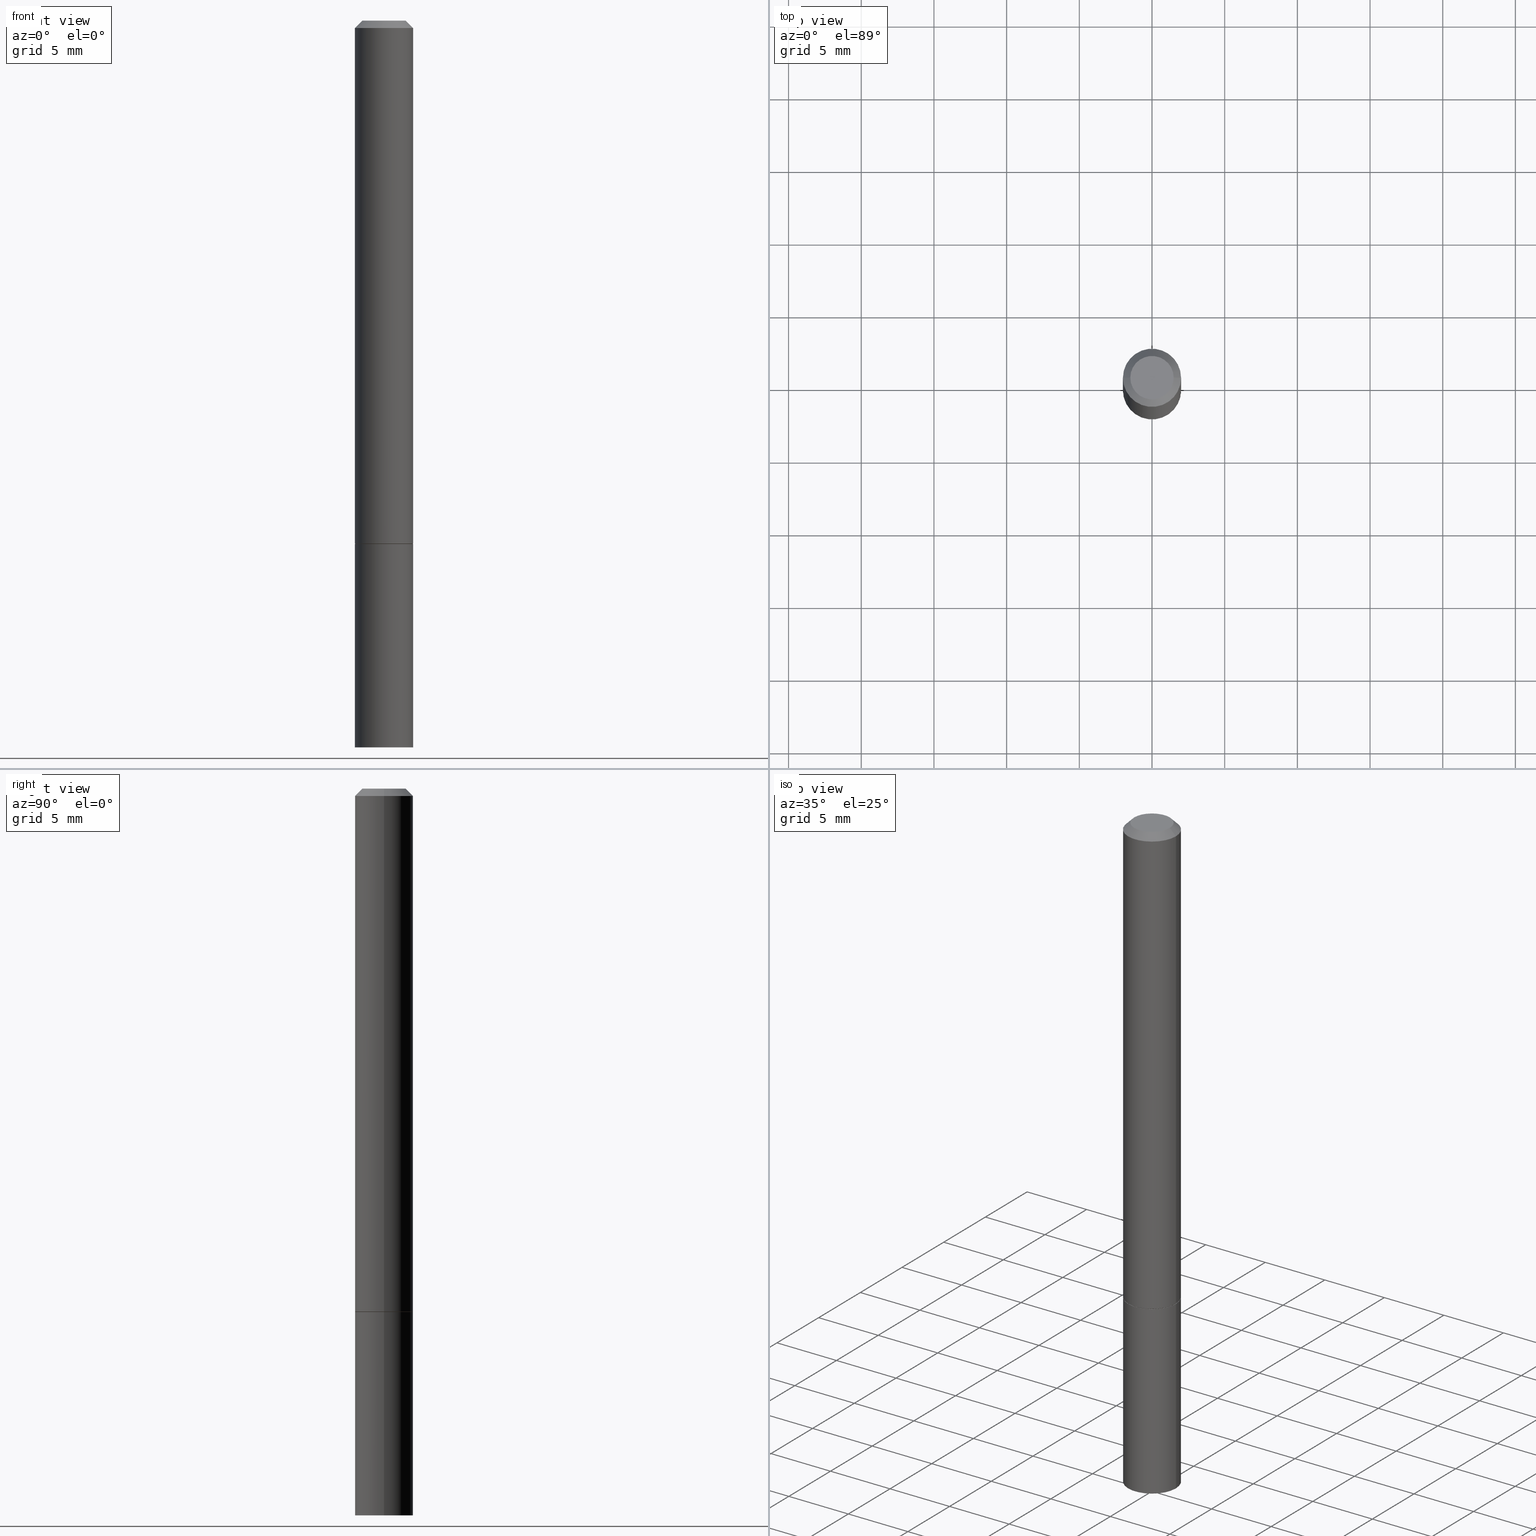
[diagram: canonical four-view strip — front | top / right | iso, engineering-drawing reading convention]
A machine part, canonical four-view strip (front | top / right | iso — engineering-drawing reading convention). The complete STEP part file that produces these views, byte-faithful:
ISO-10303-21;
HEADER;
FILE_DESCRIPTION (( 'STEP AP203' ),
    '1' );
FILE_NAME ('40129.STEP',
    '2024-02-28T01:31:01',
    ( '' ),
    ( '' ),
    'SwSTEP 2.0',
    'SolidWorks 2023',
    '' );
FILE_SCHEMA (( 'CONFIG_CONTROL_DESIGN' ));
ENDSEC;

DATA;
#1 = AXIS2_PLACEMENT_3D ( 'NONE', #326, #156, #240 ) ;
#2 = ADVANCED_FACE ( 'NONE', ( #6 ), #29, .T. ) ;
#3 = PERSON_AND_ORGANIZATION_ROLE ( 'creator' ) ;
#4 = ORIENTED_EDGE ( 'NONE', *, *, #142, .T. ) ;
#5 = APPROVAL_ROLE ( '' ) ;
#6 = FACE_OUTER_BOUND ( 'NONE', #360, .T. ) ;
#7 = CALENDAR_DATE ( 2024, 27, 2 ) ;
#8 = CARTESIAN_POINT ( 'NONE',  ( 4.813905344975441835E-29, -6.872981015512731707E-15, -1.968500000000000139 ) ) ;
#9 = CIRCLE ( 'NONE', #257, 0.07875000000000000056 ) ;
#10 = DATE_TIME_ROLE ( 'creation_date' ) ;
#11 = LOCAL_TIME ( 20, 31, 1.000000000000000000, #66 ) ;
#12 = DIRECTION ( 'NONE',  ( 2.445468806185136597E-29, -3.491481338843145583E-15, -1.000000000000000000 ) ) ;
#13 = CALENDAR_DATE ( 2024, 27, 2 ) ;
#14 = VERTEX_POINT ( 'NONE', #37 ) ;
#15 = DIRECTION ( 'NONE',  ( 1.000000000000000000, -6.982962677686265922E-15, 4.876176775795935232E-29 ) ) ;
#16 = AXIS2_PLACEMENT_3D ( 'NONE', #80, #297, #15 ) ;
#17 = AXIS2_PLACEMENT_3D ( 'NONE', #249, #160, #85 ) ;
#18 = DIRECTION ( 'NONE',  ( 1.000000000000000000, -6.982962677686261977E-15, 0.000000000000000000 ) ) ;
#19 = DIRECTION ( 'NONE',  ( -2.445468806185136877E-29, 3.491481338843145188E-15, 1.000000000000000000 ) ) ;
#20 = PLANE ( 'NONE',  #328 ) ;
#21 = LINE ( 'NONE', #215, #60 ) ;
#22 = CIRCLE ( 'NONE', #165, 0.07874999999999984790 ) ;
#23 = APPROVAL_PERSON_ORGANIZATION ( #235, #78, #279 ) ;
#24 = FACE_OUTER_BOUND ( 'NONE', #90, .T. ) ;
#25 = DIRECTION ( 'NONE',  ( -1.000000000000000000, 6.982962677686265922E-15, -4.876176775795935793E-29 ) ) ;
#26 = ORIENTED_EDGE ( 'NONE', *, *, #214, .T. ) ;
#27 = CC_DESIGN_PERSON_AND_ORGANIZATION_ASSIGNMENT ( #41, #175, ( #185 ) ) ;
#28 = LINE ( 'NONE', #55, #54 ) ;
#29 = CONICAL_SURFACE ( 'NONE', #189, 0.07874999999999984790, 0.7853981633974471688 ) ;
#30 = VERTEX_POINT ( 'NONE', #197 ) ;
#31 = LENGTH_MEASURE_WITH_UNIT ( LENGTH_MEASURE( 0.02539999999999999897 ), #358 );
#32 = CC_DESIGN_PERSON_AND_ORGANIZATION_ASSIGNMENT ( #312, #38, ( #341 ) ) ;
#33 = CIRCLE ( 'NONE', #150, 0.07875000000000000056 ) ;
#34 = APPROVAL_STATUS ( 'not_yet_approved' ) ;
#35 = VERTEX_POINT ( 'NONE', #125 ) ;
#36 = DATE_AND_TIME ( #7, #181 ) ;
#37 = CARTESIAN_POINT ( 'NONE',  ( -0.07874999999999984790, 4.800786840909293572E-16, -0.02000000000000004205 ) ) ;
#38 = PERSON_AND_ORGANIZATION_ROLE ( 'classification_officer' ) ;
#39 = EDGE_LOOP ( 'NONE', ( #277, #110, #229, #250 ) ) ;
#40 = VECTOR ( 'NONE', #213, 39.37007874015748143 ) ;
#41 = PERSON_AND_ORGANIZATION ( #205, #334 ) ;
#42 = ORIENTED_EDGE ( 'NONE', *, *, #95, .F. ) ;
#43 = DIRECTION ( 'NONE',  ( -1.000000000000000000, 6.982962677686265922E-15, 0.000000000000000000 ) ) ;
#44 = EDGE_CURVE ( 'NONE', #30, #148, #33, .T. ) ;
#45 = DIRECTION ( 'NONE',  ( 1.000000000000000000, -6.982962677686265922E-15, 4.876176775795935232E-29 ) ) ;
#46 = DIRECTION ( 'NONE',  ( -2.445468806185136597E-29, 3.491481338843145583E-15, 1.000000000000000000 ) ) ;
#47 = DIRECTION ( 'NONE',  ( 0.7071067811865466846, -7.319954787623252890E-15, -0.7071067811865483499 ) ) ;
#48 = CARTESIAN_POINT ( 'NONE',  ( -0.07774999999999999967, -4.390731070140690247E-15, -1.417300000000000226 ) ) ;
#49 = CARTESIAN_POINT ( 'NONE',  ( 5.499083108678415648E-16, 0.07874999999999311717, -1.968500000000000361 ) ) ;
#50 = VECTOR ( 'NONE', #364, 39.37007874015748143 ) ;
#51 = DIRECTION ( 'NONE',  ( 1.000000000000000000, -6.982962677686265922E-15, 4.876176775795935793E-29 ) ) ;
#52 = ORIENTED_EDGE ( 'NONE', *, *, #131, .T. ) ;
#53 = DIRECTION ( 'NONE',  ( 0.7071067811864267805, -2.468850131080992517E-15, 0.7071067811866682540 ) ) ;
#54 = VECTOR ( 'NONE', #166, 39.37007874015748143 ) ;
#55 = CARTESIAN_POINT ( 'NONE',  ( -0.07874999999999984790, 4.800786840909293572E-16, -0.02000000000000004205 ) ) ;
#56 = PERSON_AND_ORGANIZATION_ROLE ( 'design_supplier' ) ;
#57 = CALENDAR_DATE ( 2024, 27, 2 ) ;
#58 = CARTESIAN_POINT ( 'NONE',  ( 3.463517470200008716E-29, -4.944985020203546646E-15, -1.416299999999999892 ) ) ;
#59 = DESIGN_CONTEXT ( 'detailed design', #169, 'design' ) ;
#60 = VECTOR ( 'NONE', #262, 39.37007874015748143 ) ;
#61 = ADVANCED_FACE ( 'NONE', ( #315 ), #210, .F. ) ;
#62 = ORIENTED_EDGE ( 'NONE', *, *, #44, .T. ) ;
#63 = PRODUCT_RELATED_PRODUCT_CATEGORY ( 'detail', '', ( #185 ) ) ;
#64 = APPROVAL_STATUS ( 'not_yet_approved' ) ;
#65 = ORIENTED_EDGE ( 'NONE', *, *, #112, .T. ) ;
#66 = COORDINATED_UNIVERSAL_TIME_OFFSET ( 5, 0, .BEHIND. ) ;
#67 = ORIENTED_EDGE ( 'NONE', *, *, #321, .T. ) ;
#68 = AXIS2_PLACEMENT_3D ( 'NONE', #261, #46, #320 ) ;
#69 = PRODUCT_DEFINITION_FORMATION_WITH_SPECIFIED_SOURCE ( 'ANY', '', #185, .NOT_KNOWN. ) ;
#70 = CIRCLE ( 'NONE', #288, 0.05874999999999985095 ) ;
#71 = ORIENTED_EDGE ( 'NONE', *, *, #218, .T. ) ;
#72 = CARTESIAN_POINT ( 'NONE',  ( 0.000000000000000000, 0.000000000000000000, 0.000000000000000000 ) ) ;
#73 = DIRECTION ( 'NONE',  ( 1.000000000000000000, -6.982962677686261977E-15, 0.000000000000000000 ) ) ;
#74 = MANIFOLD_SOLID_BREP ( 'Body-Move/Copy2[2]', #81 ) ;
#75 = CIRCLE ( 'NONE', #274, 0.07875000000000000056 ) ;
#76 = CIRCLE ( 'NONE', #190, 0.07875000000000000056 ) ;
#77 = DIRECTION ( 'NONE',  ( -2.445468806185136597E-29, 3.491481338843145583E-15, 1.000000000000000000 ) ) ;
#78 = APPROVAL ( #232, 'UNSPECIFIED' ) ;
#79 = CARTESIAN_POINT ( 'NONE',  ( 4.102490573140670944E-16, 0.05874999999999985095, -2.051245286570342868E-16 ) ) ;
#80 = CARTESIAN_POINT ( 'NONE',  ( 0.000000000000000000, 0.000000000000000000, 0.000000000000000000 ) ) ;
#81 = CLOSED_SHELL ( 'NONE', ( #126, #304, #316, #2, #363, #291, #61, #209 ) ) ;
#82 = VERTEX_POINT ( 'NONE', #200 ) ;
#83 = CYLINDRICAL_SURFACE ( 'NONE', #356, 0.07874999999999991729 ) ;
#84 = EDGE_CURVE ( 'NONE', #14, #143, #104, .T. ) ;
#85 = DIRECTION ( 'NONE',  ( -1.000000000000000000, 6.982962677686265922E-15, 0.000000000000000000 ) ) ;
#86 = AXIS2_PLACEMENT_3D ( 'NONE', #324, #323, #18 ) ;
#87 = AXIS2_PLACEMENT_3D ( 'NONE', #194, #221, #272 ) ;
#88 = CARTESIAN_POINT ( 'NONE',  ( 0.000000000000000000, 0.000000000000000000, 0.000000000000000000 ) ) ;
#89 = COORDINATED_UNIVERSAL_TIME_OFFSET ( 5, 0, .BEHIND. ) ;
#90 = EDGE_LOOP ( 'NONE', ( #285, #191 ) ) ;
#91 = DIRECTION ( 'NONE',  ( 1.000000000000000000, -6.982962677686265922E-15, 4.876176775795935793E-29 ) ) ;
#92 = APPROVAL ( #34, 'UNSPECIFIED' ) ;
#93 = PERSON_AND_ORGANIZATION ( #205, #334 ) ;
#94 = DIRECTION ( 'NONE',  ( -2.445468806185136597E-29, 3.491481338843145583E-15, 1.000000000000000000 ) ) ;
#95 = EDGE_CURVE ( 'NONE', #82, #309, #9, .T. ) ;
#96 = APPLICATION_PROTOCOL_DEFINITION ( 'international standard', 'config_control_design', 1994, #169 ) ;
#97 = ORIENTED_EDGE ( 'NONE', *, *, #106, .T. ) ;
#98 = EDGE_LOOP ( 'NONE', ( #180, #313, #300, #146 ) ) ;
#99 = FACE_OUTER_BOUND ( 'NONE', #339, .T. ) ;
#100 = CARTESIAN_POINT ( 'NONE',  ( 3.463517470200008716E-29, -4.944985020203546646E-15, -1.416299999999999892 ) ) ;
#101 = EDGE_CURVE ( 'NONE', #289, #172, #75, .T. ) ;
#102 = DIRECTION ( 'NONE',  ( -2.445468806185136597E-29, 3.491481338843145583E-15, 1.000000000000000000 ) ) ;
#103 = CC_DESIGN_PERSON_AND_ORGANIZATION_ASSIGNMENT ( #179, #3, ( #69 ) ) ;
#104 = CIRCLE ( 'NONE', #348, 0.07874999999999984790 ) ;
#105 = DIRECTION ( 'NONE',  ( 2.438088387897960049E-29, -3.491481338843145188E-15, -1.000000000000000000 ) ) ;
#106 = EDGE_CURVE ( 'NONE', #35, #143, #350, .T. ) ;
#107 = CARTESIAN_POINT ( 'NONE',  ( 4.890937612370283668E-31, -6.982962677686305168E-17, -0.02000000000000004205 ) ) ;
#108 = LINE ( 'NONE', #299, #50 ) ;
#109 =( NAMED_UNIT ( * ) SI_UNIT ( $, .STERADIAN. ) SOLID_ANGLE_UNIT ( ) );
#110 = ORIENTED_EDGE ( 'NONE', *, *, #351, .T. ) ;
#111 = APPLICATION_PROTOCOL_DEFINITION ( 'international standard', 'config_control_design', 1994, #325 ) ;
#112 = EDGE_CURVE ( 'NONE', #82, #289, #136, .T. ) ;
#113 = CARTESIAN_POINT ( 'NONE',  ( 3.465962939006194880E-29, -4.948476501542391231E-15, -1.417300000000000226 ) ) ;
#114 = ORIENTED_EDGE ( 'NONE', *, *, #84, .F. ) ;
#115 = DIRECTION ( 'NONE',  ( 1.000000000000000000, -6.982962677686261977E-15, 0.000000000000000000 ) ) ;
#116 = VECTOR ( 'NONE', #245, 39.37007874015748143 ) ;
#117 = CARTESIAN_POINT ( 'NONE',  ( 4.890937612370283668E-31, -6.982962677686305168E-17, -0.02000000000000004205 ) ) ;
#118 = DATE_AND_TIME ( #252, #318 ) ;
#119 = DIRECTION ( 'NONE',  ( -2.438088387897960049E-29, 3.491481338843145188E-15, 1.000000000000000000 ) ) ;
#120 = DIRECTION ( 'NONE',  ( 0.000000000000000000, 0.000000000000000000, 1.000000000000000000 ) ) ;
#121 = VERTEX_POINT ( 'NONE', #296 ) ;
#122 = CIRCLE ( 'NONE', #225, 0.05874999999999985095 ) ;
#123 = CONICAL_SURFACE ( 'NONE', #17, 0.07874999999999984790, 0.7853981633974471688 ) ;
#124 = CARTESIAN_POINT ( 'NONE',  ( 0.000000000000000000, 0.000000000000000000, 0.000000000000000000 ) ) ;
#125 = CARTESIAN_POINT ( 'NONE',  ( 0.05874999999999985095, -5.065740507352233199E-16, 3.205406768517977340E-30 ) ) ;
#126 = ADVANCED_FACE ( 'NONE', ( #211 ), #244, .T. ) ;
#127 = SHAPE_DEFINITION_REPRESENTATION ( #243, #174 ) ;
#128 = ORIENTED_EDGE ( 'NONE', *, *, #351, .F. ) ;
#129 = CARTESIAN_POINT ( 'NONE',  ( 0.000000000000000000, 0.000000000000000000, 0.000000000000000000 ) ) ;
#130 = APPROVAL_PERSON_ORGANIZATION ( #196, #92, #5 ) ;
#131 = EDGE_CURVE ( 'NONE', #143, #14, #22, .T. ) ;
#132 = FACE_OUTER_BOUND ( 'NONE', #248, .T. ) ;
#133 = CARTESIAN_POINT ( 'NONE',  ( -0.05874999999999985095, 4.451638707024982998E-16, -2.990994270918719790E-30 ) ) ;
#134 = DIRECTION ( 'NONE',  ( 2.438088387897960049E-29, -3.491481338843145188E-15, -1.000000000000000000 ) ) ;
#135 = AXIS2_PLACEMENT_3D ( 'NONE', #124, #120, #170 ) ;
#136 = LINE ( 'NONE', #353, #40 ) ;
#137 = DIRECTION ( 'NONE',  ( 2.438088387897960049E-29, -3.491481338843145188E-15, -1.000000000000000000 ) ) ;
#138 = ORIENTED_EDGE ( 'NONE', *, *, #359, .F. ) ;
#139 = DIMENSIONAL_EXPONENTS ( 1.000000000000000000, 0.000000000000000000, 0.000000000000000000, 0.000000000000000000, 0.000000000000000000, 0.000000000000000000, 0.000000000000000000 ) ;
#140 = CARTESIAN_POINT ( 'NONE',  ( 0.000000000000000000, 0.000000000000000000, 0.000000000000000000 ) ) ;
#141 = CARTESIAN_POINT ( 'NONE',  ( 3.465962939006194880E-29, -4.948476501542391231E-15, -1.417300000000000226 ) ) ;
#142 = EDGE_CURVE ( 'NONE', #281, #35, #122, .T. ) ;
#143 = VERTEX_POINT ( 'NONE', #157 ) ;
#144 = CC_DESIGN_DATE_AND_TIME_ASSIGNMENT ( #177, #286, ( #341 ) ) ;
#145 = COORDINATED_UNIVERSAL_TIME_OFFSET ( 5, 0, .BEHIND. ) ;
#146 = ORIENTED_EDGE ( 'NONE', *, *, #112, .F. ) ;
#147 = PERSON_AND_ORGANIZATION ( #205, #334 ) ;
#148 = VERTEX_POINT ( 'NONE', #184 ) ;
#149 = ORIENTED_EDGE ( 'NONE', *, *, #163, .F. ) ;
#150 = AXIS2_PLACEMENT_3D ( 'NONE', #58, #94, #347 ) ;
#151 = CIRCLE ( 'NONE', #87, 0.07774999999999999967 ) ;
#152 = DATE_AND_TIME ( #13, #201 ) ;
#153 = ORIENTED_EDGE ( 'NONE', *, *, #294, .F. ) ;
#154 = ORIENTED_EDGE ( 'NONE', *, *, #202, .T. ) ;
#155 = CARTESIAN_POINT ( 'NONE',  ( 3.465962939006194880E-29, -4.948476501542391231E-15, -1.417300000000000226 ) ) ;
#156 = DIRECTION ( 'NONE',  ( -2.445468806185136597E-29, 3.491481338843145583E-15, 1.000000000000000000 ) ) ;
#157 = CARTESIAN_POINT ( 'NONE',  ( 0.07874999999999984790, -6.100938441013701032E-16, -0.02000000000000004205 ) ) ;
#158 = DIRECTION ( 'NONE',  ( 1.000000000000000000, -6.982962677686265922E-15, 0.000000000000000000 ) ) ;
#159 = VECTOR ( 'NONE', #19, 39.37007874015748143 ) ;
#160 = DIRECTION ( 'NONE',  ( 2.445468806185136597E-29, -3.491481338843145583E-15, -1.000000000000000000 ) ) ;
#161 = FACE_OUTER_BOUND ( 'NONE', #39, .T. ) ;
#162 = EDGE_LOOP ( 'NONE', ( #128, #62, #26, #114 ) ) ;
#163 = EDGE_CURVE ( 'NONE', #309, #172, #186, .T. ) ;
#164 = CARTESIAN_POINT ( 'NONE',  ( -0.07875000000000000056, -5.351176354116483062E-15, -1.968500000000000139 ) ) ;
#165 = AXIS2_PLACEMENT_3D ( 'NONE', #107, #216, #158 ) ;
#166 = DIRECTION ( 'NONE',  ( -0.7071067811865466846, 2.468850131082247989E-15, -0.7071067811865483499 ) ) ;
#167 = ADVANCED_FACE ( 'NONE', ( #99 ), #20, .T. ) ;
#168 = ORIENTED_EDGE ( 'NONE', *, *, #44, .F. ) ;
#169 = APPLICATION_CONTEXT ( 'configuration controlled 3d designs of mechanical parts and assemblies' ) ;
#170 = DIRECTION ( 'NONE',  ( 1.000000000000000000, 0.000000000000000000, 0.000000000000000000 ) ) ;
#171 = CIRCLE ( 'NONE', #68, 0.07774999999999999967 ) ;
#172 = VERTEX_POINT ( 'NONE', #292 ) ;
#173 = AXIS2_PLACEMENT_3D ( 'NONE', #88, #302, #336 ) ;
#174 = ADVANCED_BREP_SHAPE_REPRESENTATION ( '40129', ( #193, #74, #135 ), #271 ) ;
#175 = PERSON_AND_ORGANIZATION_ROLE ( 'design_owner' ) ;
#176 = VERTEX_POINT ( 'NONE', #48 ) ;
#177 = DATE_AND_TIME ( #208, #349 ) ;
#178 = EDGE_LOOP ( 'NONE', ( #207, #231 ) ) ;
#179 = PERSON_AND_ORGANIZATION ( #205, #334 ) ;
#180 = ORIENTED_EDGE ( 'NONE', *, *, #95, .T. ) ;
#181 = LOCAL_TIME ( 20, 31, 1.000000000000000000, #89 ) ;
#182 = CARTESIAN_POINT ( 'NONE',  ( 4.890937612370283668E-31, -6.982962677686305168E-17, -0.02000000000000004205 ) ) ;
#183 = DIRECTION ( 'NONE',  ( -2.445468806185136597E-29, 3.491481338843145583E-15, 1.000000000000000000 ) ) ;
#184 = CARTESIAN_POINT ( 'NONE',  ( 0.07875000000000000056, -5.494893331071339992E-15, -1.416299999999999892 ) ) ;
#185 = PRODUCT ( '40129', '40129', '', ( #256 ) ) ;
#186 = LINE ( 'NONE', #267, #159 ) ;
#187 = CARTESIAN_POINT ( 'NONE',  ( 0.07874999999999991729, -5.499083108677928526E-16, 3.839989210939295513E-30 ) ) ;
#188 = DIRECTION ( 'NONE',  ( -1.000000000000000000, 6.982962677686265922E-15, -4.876176775795935793E-29 ) ) ;
#189 = AXIS2_PLACEMENT_3D ( 'NONE', #117, #12, #43 ) ;
#190 = AXIS2_PLACEMENT_3D ( 'NONE', #113, #223, #115 ) ;
#191 = ORIENTED_EDGE ( 'NONE', *, *, #294, .T. ) ;
#192 = FACE_OUTER_BOUND ( 'NONE', #204, .T. ) ;
#193 = MANIFOLD_SOLID_BREP ( 'Body-Move/Copy2[1]', #293 ) ;
#194 = CARTESIAN_POINT ( 'NONE',  ( 3.465962939006194880E-29, -4.948476501542391231E-15, -1.417300000000000226 ) ) ;
#195 = DIRECTION ( 'NONE',  ( -2.445468806185136597E-29, 3.491481338843145583E-15, 1.000000000000000000 ) ) ;
#196 = PERSON_AND_ORGANIZATION ( #205, #334 ) ;
#197 = CARTESIAN_POINT ( 'NONE',  ( -0.07875000000000000056, -1.947854919079123015E-15, -1.416299999999999892 ) ) ;
#198 = UNCERTAINTY_MEASURE_WITH_UNIT (LENGTH_MEASURE( 1.000000000000000082E-05 ), #217, 'distance_accuracy_value', 'NONE');
#199 = VECTOR ( 'NONE', #53, 39.37007874015748143 ) ;
#200 = CARTESIAN_POINT ( 'NONE',  ( 0.07875000000000000056, -7.422889326380525053E-15, -1.968500000000000139 ) ) ;
#201 = LOCAL_TIME ( 20, 31, 1.000000000000000000, #206 ) ;
#202 = EDGE_CURVE ( 'NONE', #176, #121, #171, .T. ) ;
#203 = SECURITY_CLASSIFICATION_LEVEL ( 'unclassified' ) ;
#204 = EDGE_LOOP ( 'NONE', ( #365, #154, #342, #168 ) ) ;
#205 = PERSON ( 'UNSPECIFIED', 'UNSPECIFIED', 'UNSPECIFIED', ('UNSPECIFIED'), ('UNSPECIFIED'), ('UNSPECIFIED') ) ;
#206 = COORDINATED_UNIVERSAL_TIME_OFFSET ( 5, 0, .BEHIND. ) ;
#207 = ORIENTED_EDGE ( 'NONE', *, *, #335, .F. ) ;
#208 = CALENDAR_DATE ( 2024, 27, 2 ) ;
#209 = ADVANCED_FACE ( 'NONE', ( #132 ), #354, .F. ) ;
#210 = PLANE ( 'NONE',  #251 ) ;
#211 = FACE_OUTER_BOUND ( 'NONE', #224, .T. ) ;
#212 = DIRECTION ( 'NONE',  ( -2.445468806185136597E-29, 3.491481338843145583E-15, 1.000000000000000000 ) ) ;
#213 = DIRECTION ( 'NONE',  ( -2.445468806185136877E-29, 3.491481338843145188E-15, 1.000000000000000000 ) ) ;
#214 = EDGE_CURVE ( 'NONE', #148, #143, #352, .T. ) ;
#215 = CARTESIAN_POINT ( 'NONE',  ( -0.07774999999999999967, -4.396029524488913438E-15, -1.417300000000000226 ) ) ;
#216 = DIRECTION ( 'NONE',  ( -2.445468806185136597E-29, 3.491481338843145583E-15, 1.000000000000000000 ) ) ;
#217 =( CONVERSION_BASED_UNIT ( 'INCH', #31 ) LENGTH_UNIT ( ) NAMED_UNIT ( #139 ) );
#218 = EDGE_CURVE ( 'NONE', #309, #82, #317, .T. ) ;
#219 = CC_DESIGN_DATE_AND_TIME_ASSIGNMENT ( #340, #10, ( #332 ) ) ;
#220 = ORIENTED_EDGE ( 'NONE', *, *, #335, .T. ) ;
#221 = DIRECTION ( 'NONE',  ( -2.445468806185136597E-29, 3.491481338843145583E-15, 1.000000000000000000 ) ) ;
#222 = ADVANCED_FACE ( 'NONE', ( #357 ), #241, .T. ) ;
#223 = DIRECTION ( 'NONE',  ( -2.445468806185136597E-29, 3.491481338843145583E-15, 1.000000000000000000 ) ) ;
#224 = EDGE_LOOP ( 'NONE', ( #220, #255, #345, #338 ) ) ;
#225 = AXIS2_PLACEMENT_3D ( 'NONE', #129, #102, #295 ) ;
#226 = LINE ( 'NONE', #301, #199 ) ;
#227 = CC_DESIGN_APPROVAL ( #298, ( #69 ) ) ;
#228 = ORIENTED_EDGE ( 'NONE', *, *, #359, .T. ) ;
#229 = ORIENTED_EDGE ( 'NONE', *, *, #131, .F. ) ;
#230 = ADVANCED_FACE ( 'NONE', ( #268 ), #242, .T. ) ;
#231 = ORIENTED_EDGE ( 'NONE', *, *, #202, .F. ) ;
#232 = APPROVAL_STATUS ( 'not_yet_approved' ) ;
#233 = DIRECTION ( 'NONE',  ( -2.445468806185136597E-29, 3.491481338843145583E-15, 1.000000000000000000 ) ) ;
#234 = CC_DESIGN_SECURITY_CLASSIFICATION ( #341, ( #69 ) ) ;
#235 = PERSON_AND_ORGANIZATION ( #205, #334 ) ;
#236 = EDGE_LOOP ( 'NONE', ( #307, #97, #52, #138 ) ) ;
#237 = APPROVAL_DATE_TIME ( #36, #78 ) ;
#238 = ORIENTED_EDGE ( 'NONE', *, *, #106, .F. ) ;
#239 = DIRECTION ( 'NONE',  ( -1.000000000000000000, 6.982962677686265922E-15, -4.876176775795935793E-29 ) ) ;
#240 = DIRECTION ( 'NONE',  ( 1.000000000000000000, -6.982962677686261977E-15, 0.000000000000000000 ) ) ;
#241 = CYLINDRICAL_SURFACE ( 'NONE', #16, 0.07875000000000000056 ) ;
#242 = CYLINDRICAL_SURFACE ( 'NONE', #263, 0.07875000000000000056 ) ;
#243 = PRODUCT_DEFINITION_SHAPE ( 'NONE', 'NONE',  #332 ) ;
#244 = CONICAL_SURFACE ( 'NONE', #86, 0.07774999999999999967, 0.7853981633972775267 ) ;
#245 = DIRECTION ( 'NONE',  ( -2.445468806185136877E-29, 3.491481338843145188E-15, 1.000000000000000000 ) ) ;
#246 = CYLINDRICAL_SURFACE ( 'NONE', #173, 0.07874999999999991729 ) ;
#247 = CARTESIAN_POINT ( 'NONE',  ( 5.499083108678280556E-16, 0.07874999999999504618, -1.417300000000000448 ) ) ;
#248 = EDGE_LOOP ( 'NONE', ( #4, #67 ) ) ;
#249 = CARTESIAN_POINT ( 'NONE',  ( 4.890937612370283668E-31, -6.982962677686305168E-17, -0.02000000000000004205 ) ) ;
#250 = ORIENTED_EDGE ( 'NONE', *, *, #214, .F. ) ;
#251 = AXIS2_PLACEMENT_3D ( 'NONE', #253, #119, #91 ) ;
#252 = CALENDAR_DATE ( 2024, 27, 2 ) ;
#253 = CARTESIAN_POINT ( 'NONE',  ( 3.465962939006194880E-29, -4.948476501542391231E-15, -1.417300000000000226 ) ) ;
#254 = EDGE_CURVE ( 'NONE', #176, #30, #21, .T. ) ;
#255 = ORIENTED_EDGE ( 'NONE', *, *, #254, .T. ) ;
#256 = MECHANICAL_CONTEXT ( 'NONE', #325, 'mechanical' ) ;
#257 = AXIS2_PLACEMENT_3D ( 'NONE', #8, #233, #290 ) ;
#258 = ORIENTED_EDGE ( 'NONE', *, *, #218, .F. ) ;
#259 = APPROVAL_DATE_TIME ( #118, #92 ) ;
#260 = ORIENTED_EDGE ( 'NONE', *, *, #84, .T. ) ;
#261 = CARTESIAN_POINT ( 'NONE',  ( 3.465962939006194880E-29, -4.948476501542391231E-15, -1.417300000000000226 ) ) ;
#262 = DIRECTION ( 'NONE',  ( -0.7071067811864267805, 7.493145998869918709E-15, 0.7071067811866682540 ) ) ;
#263 = AXIS2_PLACEMENT_3D ( 'NONE', #72, #183, #45 ) ;
#264 = CONICAL_SURFACE ( 'NONE', #303, 0.07774999999999999967, 0.7853981633972775267 ) ;
#265 = DIRECTION ( 'NONE',  ( 1.000000000000000000, -6.982962677686261977E-15, 0.000000000000000000 ) ) ;
#266 = CC_DESIGN_PERSON_AND_ORGANIZATION_ASSIGNMENT ( #93, #56, ( #69 ) ) ;
#267 = CARTESIAN_POINT ( 'NONE',  ( -0.07875000000000000056, 5.595524044110789003E-16, -3.873661383575737792E-30 ) ) ;
#268 = FACE_OUTER_BOUND ( 'NONE', #283, .T. ) ;
#269 = AXIS2_PLACEMENT_3D ( 'NONE', #79, #105, #239 ) ;
#270 = CC_DESIGN_APPROVAL ( #92, ( #341 ) ) ;
#271 =( GEOMETRIC_REPRESENTATION_CONTEXT ( 3 ) GLOBAL_UNCERTAINTY_ASSIGNED_CONTEXT ( ( #198 ) ) GLOBAL_UNIT_ASSIGNED_CONTEXT ( ( #217, #327, #109 ) ) REPRESENTATION_CONTEXT ( 'NONE', 'WORKASPACE' ) );
#272 = DIRECTION ( 'NONE',  ( 1.000000000000000000, -6.982962677686261977E-15, 0.000000000000000000 ) ) ;
#273 = DIRECTION ( 'NONE',  ( 1.000000000000000000, -6.982962677686266711E-15, 4.876176775795935793E-29 ) ) ;
#274 = AXIS2_PLACEMENT_3D ( 'NONE', #155, #77, #73 ) ;
#275 = CC_DESIGN_APPROVAL ( #78, ( #332 ) ) ;
#276 = DIRECTION ( 'NONE',  ( -2.445468806185136597E-29, 3.491481338843145583E-15, 1.000000000000000000 ) ) ;
#277 = ORIENTED_EDGE ( 'NONE', *, *, #278, .T. ) ;
#278 = EDGE_CURVE ( 'NONE', #148, #30, #310, .T. ) ;
#279 = APPROVAL_ROLE ( '' ) ;
#280 = APPROVAL_PERSON_ORGANIZATION ( #147, #298, #344 ) ;
#281 = VERTEX_POINT ( 'NONE', #133 ) ;
#282 = EDGE_CURVE ( 'NONE', #121, #148, #226, .T. ) ;
#283 = EDGE_LOOP ( 'NONE', ( #149, #71, #65, #153 ) ) ;
#284 = COORDINATED_UNIVERSAL_TIME_OFFSET ( 5, 0, .BEHIND. ) ;
#285 = ORIENTED_EDGE ( 'NONE', *, *, #101, .T. ) ;
#286 = DATE_TIME_ROLE ( 'classification_date' ) ;
#287 = ORIENTED_EDGE ( 'NONE', *, *, #142, .F. ) ;
#288 = AXIS2_PLACEMENT_3D ( 'NONE', #140, #195, #273 ) ;
#289 = VERTEX_POINT ( 'NONE', #362 ) ;
#290 = DIRECTION ( 'NONE',  ( 1.000000000000000000, -6.982962677686261977E-15, 0.000000000000000000 ) ) ;
#291 = ADVANCED_FACE ( 'NONE', ( #192 ), #264, .T. ) ;
#292 = CARTESIAN_POINT ( 'NONE',  ( -0.07875000000000000056, -5.351176354116483062E-15, -1.417300000000000226 ) ) ;
#293 = CLOSED_SHELL ( 'NONE', ( #222, #167, #343, #230 ) ) ;
#294 = EDGE_CURVE ( 'NONE', #172, #289, #76, .T. ) ;
#295 = DIRECTION ( 'NONE',  ( 1.000000000000000000, -6.982962677686266711E-15, 4.876176775795935793E-29 ) ) ;
#296 = CARTESIAN_POINT ( 'NONE',  ( 0.07774999999999999967, -5.491401849732497774E-15, -1.417300000000000226 ) ) ;
#297 = DIRECTION ( 'NONE',  ( -2.445468806185136597E-29, 3.491481338843145583E-15, 1.000000000000000000 ) ) ;
#298 = APPROVAL ( #64, 'UNSPECIFIED' ) ;
#299 = CARTESIAN_POINT ( 'NONE',  ( -0.07874999999999991729, 5.595524044110783087E-16, -3.873661383575733588E-30 ) ) ;
#300 = ORIENTED_EDGE ( 'NONE', *, *, #101, .F. ) ;
#301 = CARTESIAN_POINT ( 'NONE',  ( 0.07774999999999999967, -5.491401849732497774E-15, -1.417300000000000226 ) ) ;
#302 = DIRECTION ( 'NONE',  ( -2.445468806185136597E-29, 3.491481338843145583E-15, 1.000000000000000000 ) ) ;
#303 = AXIS2_PLACEMENT_3D ( 'NONE', #141, #333, #305 ) ;
#304 = ADVANCED_FACE ( 'NONE', ( #161 ), #246, .T. ) ;
#305 = DIRECTION ( 'NONE',  ( 1.000000000000000000, -6.982962677686261977E-15, 0.000000000000000000 ) ) ;
#306 = FACE_OUTER_BOUND ( 'NONE', #162, .T. ) ;
#307 = ORIENTED_EDGE ( 'NONE', *, *, #321, .F. ) ;
#308 = PERSON_AND_ORGANIZATION_ROLE ( 'creator' ) ;
#309 = VERTEX_POINT ( 'NONE', #164 ) ;
#310 = CIRCLE ( 'NONE', #361, 0.07875000000000000056 ) ;
#311 = DIRECTION ( 'NONE',  ( 1.000000000000000000, -6.982962677686265922E-15, 0.000000000000000000 ) ) ;
#312 = PERSON_AND_ORGANIZATION ( #205, #334 ) ;
#313 = ORIENTED_EDGE ( 'NONE', *, *, #163, .T. ) ;
#314 = APPROVAL_DATE_TIME ( #152, #298 ) ;
#315 = FACE_OUTER_BOUND ( 'NONE', #178, .T. ) ;
#316 = ADVANCED_FACE ( 'NONE', ( #366 ), #123, .T. ) ;
#317 = CIRCLE ( 'NONE', #1, 0.07875000000000000056 ) ;
#318 = LOCAL_TIME ( 20, 31, 1.000000000000000000, #145 ) ;
#319 = DIRECTION ( 'NONE',  ( -2.445468806185136597E-29, 3.491481338843145583E-15, 1.000000000000000000 ) ) ;
#320 = DIRECTION ( 'NONE',  ( 1.000000000000000000, -6.982962677686261977E-15, 0.000000000000000000 ) ) ;
#321 = EDGE_CURVE ( 'NONE', #35, #281, #70, .T. ) ;
#322 = CARTESIAN_POINT ( 'NONE',  ( 0.07874999999999984790, -6.100938441013701032E-16, -0.02000000000000004205 ) ) ;
#323 = DIRECTION ( 'NONE',  ( -2.445468806185136597E-29, 3.491481338843145583E-15, 1.000000000000000000 ) ) ;
#324 = CARTESIAN_POINT ( 'NONE',  ( 3.465962939006194880E-29, -4.948476501542391231E-15, -1.417300000000000226 ) ) ;
#325 = APPLICATION_CONTEXT ( 'configuration controlled 3d designs of mechanical parts and assemblies' ) ;
#326 = CARTESIAN_POINT ( 'NONE',  ( 4.813905344975441835E-29, -6.872981015512731707E-15, -1.968500000000000139 ) ) ;
#327 =( NAMED_UNIT ( * ) PLANE_ANGLE_UNIT ( ) SI_UNIT ( $, .RADIAN. ) );
#328 = AXIS2_PLACEMENT_3D ( 'NONE', #49, #134, #188 ) ;
#329 = AXIS2_PLACEMENT_3D ( 'NONE', #247, #137, #25 ) ;
#330 = CARTESIAN_POINT ( 'NONE',  ( 0.000000000000000000, 0.000000000000000000, 0.000000000000000000 ) ) ;
#331 = PLANE ( 'NONE',  #329 ) ;
#332 = PRODUCT_DEFINITION ( 'UNKNOWN', '', #69, #59 ) ;
#333 = DIRECTION ( 'NONE',  ( -2.445468806185136597E-29, 3.491481338843145583E-15, 1.000000000000000000 ) ) ;
#334 = ORGANIZATION ( 'UNSPECIFIED', 'UNSPECIFIED', '' ) ;
#335 = EDGE_CURVE ( 'NONE', #121, #176, #151, .T. ) ;
#336 = DIRECTION ( 'NONE',  ( 1.000000000000000000, -6.982962677686265922E-15, 4.876176775795935793E-29 ) ) ;
#337 = CC_DESIGN_PERSON_AND_ORGANIZATION_ASSIGNMENT ( #346, #308, ( #332 ) ) ;
#338 = ORIENTED_EDGE ( 'NONE', *, *, #282, .F. ) ;
#339 = EDGE_LOOP ( 'NONE', ( #42, #258 ) ) ;
#340 = DATE_AND_TIME ( #57, #11 ) ;
#341 = SECURITY_CLASSIFICATION ( '', '', #203 ) ;
#342 = ORIENTED_EDGE ( 'NONE', *, *, #282, .T. ) ;
#343 = ADVANCED_FACE ( 'NONE', ( #24 ), #331, .F. ) ;
#344 = APPROVAL_ROLE ( '' ) ;
#345 = ORIENTED_EDGE ( 'NONE', *, *, #278, .F. ) ;
#346 = PERSON_AND_ORGANIZATION ( #205, #334 ) ;
#347 = DIRECTION ( 'NONE',  ( 1.000000000000000000, -6.982962677686261977E-15, 0.000000000000000000 ) ) ;
#348 = AXIS2_PLACEMENT_3D ( 'NONE', #182, #319, #311 ) ;
#349 = LOCAL_TIME ( 20, 31, 1.000000000000000000, #284 ) ;
#350 = LINE ( 'NONE', #322, #355 ) ;
#351 = EDGE_CURVE ( 'NONE', #30, #14, #108, .T. ) ;
#352 = LINE ( 'NONE', #187, #116 ) ;
#353 = CARTESIAN_POINT ( 'NONE',  ( 0.07875000000000000056, -5.499083108677934443E-16, 3.839989210939299016E-30 ) ) ;
#354 = PLANE ( 'NONE',  #269 ) ;
#355 = VECTOR ( 'NONE', #47, 39.37007874015748143 ) ;
#356 = AXIS2_PLACEMENT_3D ( 'NONE', #330, #276, #51 ) ;
#357 = FACE_OUTER_BOUND ( 'NONE', #98, .T. ) ;
#358 =( LENGTH_UNIT ( ) NAMED_UNIT ( * ) SI_UNIT ( $, .METRE. ) );
#359 = EDGE_CURVE ( 'NONE', #281, #14, #28, .T. ) ;
#360 = EDGE_LOOP ( 'NONE', ( #238, #287, #228, #260 ) ) ;
#361 = AXIS2_PLACEMENT_3D ( 'NONE', #100, #212, #265 ) ;
#362 = CARTESIAN_POINT ( 'NONE',  ( 0.07875000000000000056, -5.498384812410184577E-15, -1.417300000000000226 ) ) ;
#363 = ADVANCED_FACE ( 'NONE', ( #306 ), #83, .T. ) ;
#364 = DIRECTION ( 'NONE',  ( -2.445468806185136877E-29, 3.491481338843145188E-15, 1.000000000000000000 ) ) ;
#365 = ORIENTED_EDGE ( 'NONE', *, *, #254, .F. ) ;
#366 = FACE_OUTER_BOUND ( 'NONE', #236, .T. ) ;
ENDSEC;
END-ISO-10303-21;
